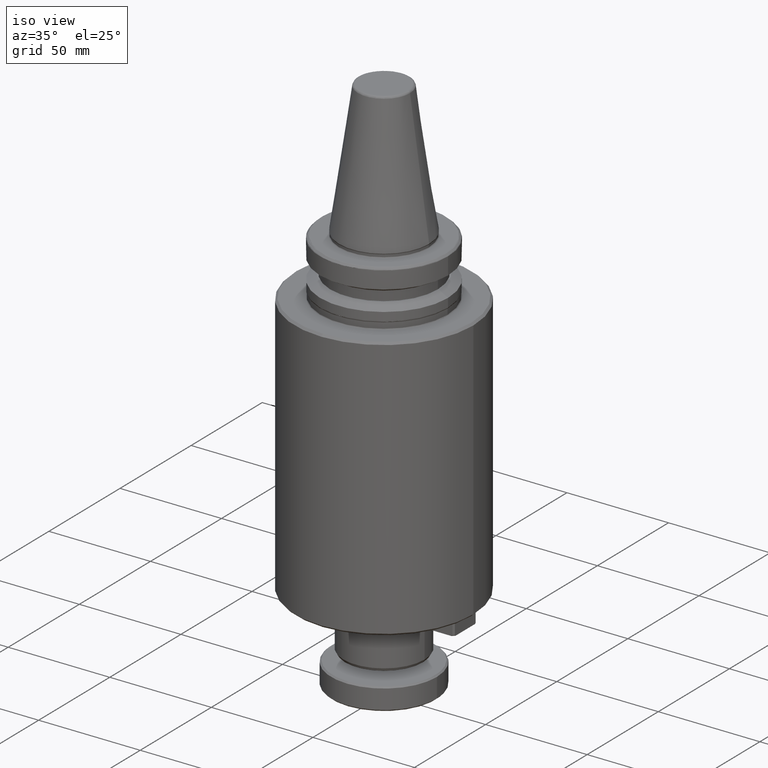
[diagram: clean part render]
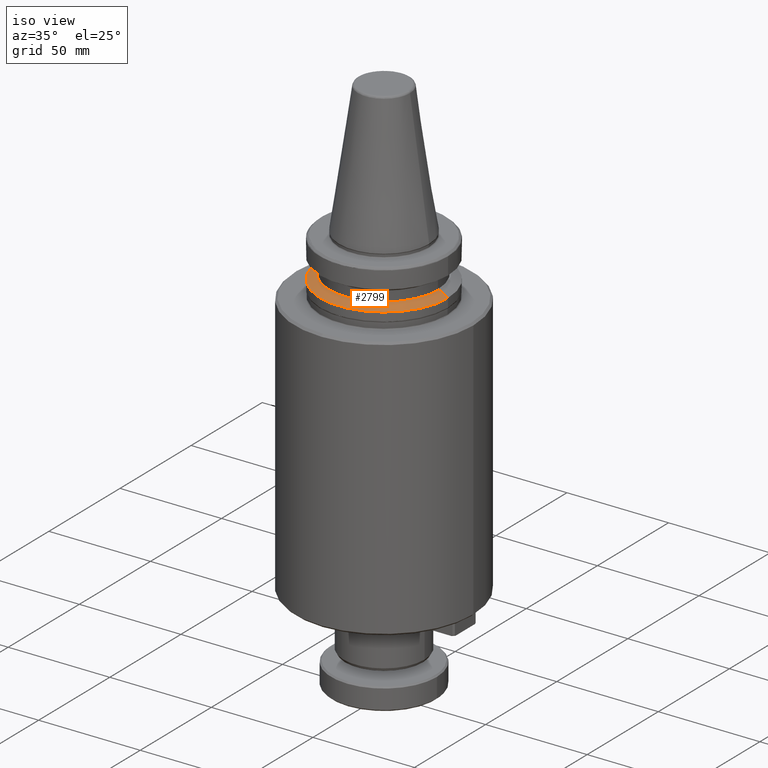
[diagram: same view with one face highlighted and labeled with its STEP entity id]
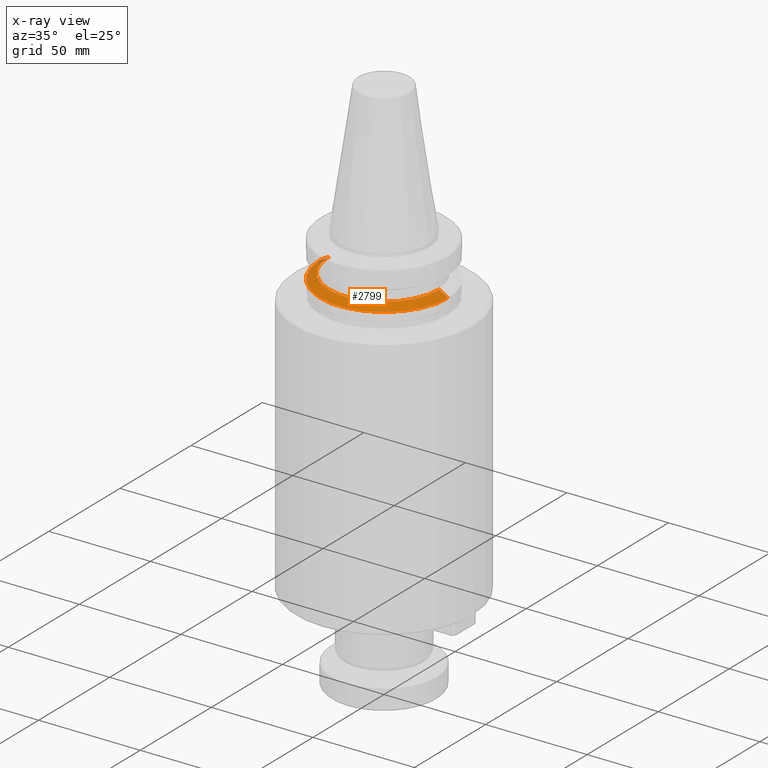
[diagram: x-ray of the same camera — body ghosted, the highlighted face saturated]
A machine part, iso view. The second image highlights one B-rep face of the part: STEP entity #2799.
The next image is the same camera in x-ray: the body ghosted, the highlighted face saturated — about 1% of this face is hidden behind the body in this view.
In plain terms, the highlighted conical surface has half-angle 60 deg.
Its self-contained STEP definition (entity closure, byte-faithful):
#93 = EDGE_CURVE ( 'NONE', #620, #1230, #2039, .T. ) ;
#124 = EDGE_CURVE ( 'NONE', #2858, #435, #2174, .T. ) ;
#155 = CONICAL_SURFACE ( 'NONE', #1503, 31.50000000000000000, 1.047197551196603000 ) ;
#435 = VERTEX_POINT ( 'NONE', #985 ) ;
#528 = EDGE_CURVE ( 'NONE', #435, #1230, #3527, .T. ) ;
#584 = CARTESIAN_POINT ( 'NONE',  ( 31.50000000000000000, 3.857637417314162700E-015, -21.60014200631674100 ) ) ;
#620 = VERTEX_POINT ( 'NONE', #2790 ) ;
#641 = EDGE_CURVE ( 'NONE', #2858, #620, #1491, .T. ) ;
#681 = AXIS2_PLACEMENT_3D ( 'NONE', #3191, #2278, #692 ) ;
#692 = DIRECTION ( 'NONE',  ( -1.000000000000000000, 0.0000000000000000000, 0.0000000000000000000 ) ) ;
#786 = ORIENTED_EDGE ( 'NONE', *, *, #124, .F. ) ;
#868 = CARTESIAN_POINT ( 'NONE',  ( -31.50000000000000000, 0.0000000000000000000, -21.60014200631674100 ) ) ;
#985 = CARTESIAN_POINT ( 'NONE',  ( 31.50000000000000000, 3.857637417314162700E-015, -21.60014200631674100 ) ) ;
#1069 = CARTESIAN_POINT ( 'NONE',  ( 27.16962701892216400, 3.592478546794604700E-015, -19.09999999999999800 ) ) ;
#1095 = DIRECTION ( 'NONE',  ( -0.0000000000000000000, -0.0000000000000000000, -1.000000000000000000 ) ) ;
#1142 = DIRECTION ( 'NONE',  ( -1.000000000000000000, 0.0000000000000000000, 0.0000000000000000000 ) ) ;
#1145 = CARTESIAN_POINT ( 'NONE',  ( 0.0000000000000000000, 0.0000000000000000000, -21.60014200631674100 ) ) ;
#1158 = DIRECTION ( 'NONE',  ( 0.0000000000000000000, 0.0000000000000000000, -1.000000000000000000 ) ) ;
#1230 = VERTEX_POINT ( 'NONE', #868 ) ;
#1491 = CIRCLE ( 'NONE', #681, 27.16962701892216400 ) ;
#1503 = AXIS2_PLACEMENT_3D ( 'NONE', #1145, #1158, #1142 ) ;
#1643 = FACE_OUTER_BOUND ( 'NONE', #3064, .T. ) ;
#1687 = ORIENTED_EDGE ( 'NONE', *, *, #641, .T. ) ;
#1732 = DIRECTION ( 'NONE',  ( 0.8660254037844412600, 1.060575238724910200E-016, -0.4999999999999955000 ) ) ;
#2039 = LINE ( 'NONE', #2313, #2083 ) ;
#2083 = VECTOR ( 'NONE', #2375, 1000.000000000000000 ) ;
#2164 = DIRECTION ( 'NONE',  ( 1.000000000000000000, 0.0000000000000000000, 0.0000000000000000000 ) ) ;
#2174 = LINE ( 'NONE', #584, #2320 ) ;
#2267 = AXIS2_PLACEMENT_3D ( 'NONE', #3195, #1095, #2164 ) ;
#2278 = DIRECTION ( 'NONE',  ( 0.0000000000000000000, 0.0000000000000000000, -1.000000000000000000 ) ) ;
#2313 = CARTESIAN_POINT ( 'NONE',  ( -31.50000000000000000, 0.0000000000000000000, -21.60014200631674100 ) ) ;
#2320 = VECTOR ( 'NONE', #1732, 1000.000000000000000 ) ;
#2375 = DIRECTION ( 'NONE',  ( -0.8660254037844412600, 0.0000000000000000000, -0.4999999999999955000 ) ) ;
#2790 = CARTESIAN_POINT ( 'NONE',  ( -27.16962701892216400, 0.0000000000000000000, -19.09999999999999800 ) ) ;
#2799 = ADVANCED_FACE ( 'NONE', ( #1643 ), #155, .T. ) ;
#2858 = VERTEX_POINT ( 'NONE', #1069 ) ;
#2866 = ORIENTED_EDGE ( 'NONE', *, *, #528, .F. ) ;
#3064 = EDGE_LOOP ( 'NONE', ( #786, #1687, #3386, #2866 ) ) ;
#3191 = CARTESIAN_POINT ( 'NONE',  ( 0.0000000000000000000, 0.0000000000000000000, -19.09999999999999800 ) ) ;
#3195 = CARTESIAN_POINT ( 'NONE',  ( 0.0000000000000000000, 0.0000000000000000000, -21.60014200631674100 ) ) ;
#3386 = ORIENTED_EDGE ( 'NONE', *, *, #93, .T. ) ;
#3527 = CIRCLE ( 'NONE', #2267, 31.50000000000000000 ) ;